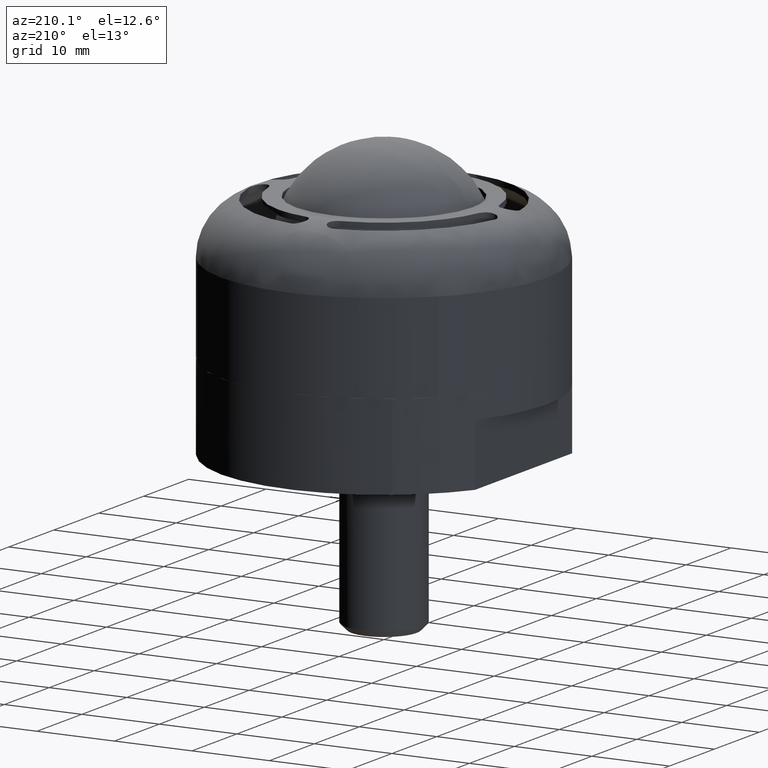
[diagram: clean part render]
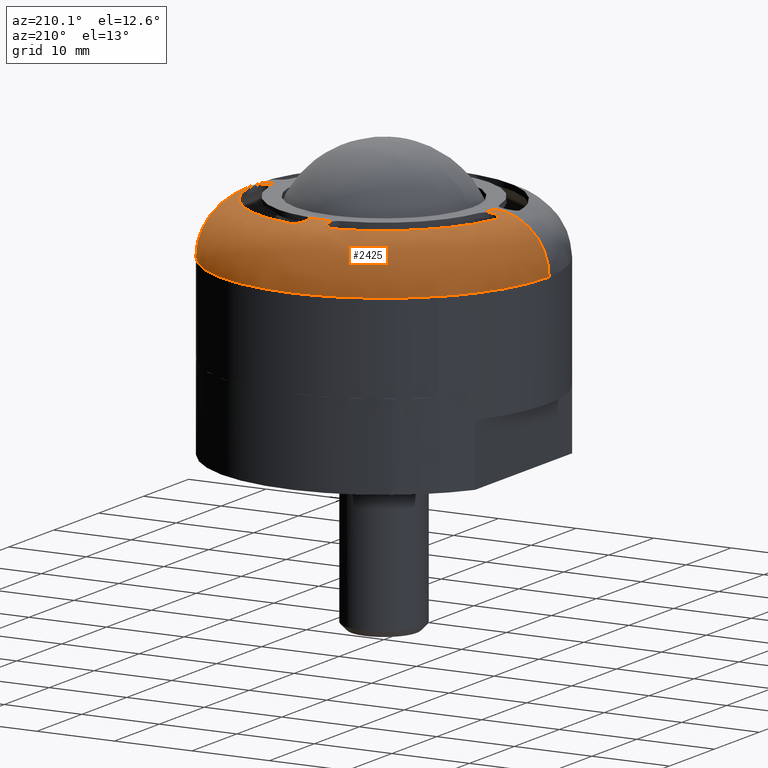
[diagram: same view with one face highlighted and labeled with its STEP entity id]
A machine part, auxiliary view. The second image highlights one B-rep face of the part: STEP entity #2425.
In plain terms, the highlighted face is a freeform B-spline surface patch.
Its self-contained STEP definition (entity closure, byte-faithful):
#1622=CARTESIAN_POINT('',(-20.993368387359819,-0.527715597069550,11.499987475256731));
#1623=VERTEX_POINT('',#1622);
#1642=CARTESIAN_POINT('',(-21.0,0.0,11.500000000000201));
#1643=VERTEX_POINT('',#1642);
#1644=CARTESIAN_POINT('',(-20.993368387359819,-0.527715597069550,11.499987475256731));
#1645=CARTESIAN_POINT('',(-20.997789240548951,-0.351848495049241,11.499991649926310));
#1646=CARTESIAN_POINT('',(-21.000000045159890,-0.175922305187864,11.499995825338980));
#1647=CARTESIAN_POINT('',(-21.0,0.0,11.500000000000201));
#1648=B_SPLINE_CURVE_WITH_KNOTS('',3,(#1644,#1645,#1646,#1647),.UNSPECIFIED.,.F.,.U.,(4,4),(8.567147E-012,0.527772021602235),.UNSPECIFIED.);
#1649=EDGE_CURVE('',#1623,#1643,#1648,.T.);
#1651=CARTESIAN_POINT('',(-15.343410188817231,14.338052998152040,11.499998259417641));
#1652=VERTEX_POINT('',#1651);
#1653=CARTESIAN_POINT('',(-21.0,0.0,11.500000000000201));
#1654=CARTESIAN_POINT('',(-21.000025862269109,0.904196162848490,11.499999996618840));
#1655=CARTESIAN_POINT('',(-20.875072149144479,2.835886784917681,11.499999952116360));
#1656=CARTESIAN_POINT('',(-20.319620306579139,5.540544819988820,11.499999776338569));
#1657=CARTESIAN_POINT('',(-19.494668499493219,7.912605405436048,11.499999521440440));
#1658=CARTESIAN_POINT('',(-18.459913490480769,10.108594034363710,11.499999204636980));
#1659=CARTESIAN_POINT('',(-17.136135247243441,12.244435084637759,11.499998801870129));
#1660=CARTESIAN_POINT('',(-15.960781954138721,13.677429947239220,11.499998445999060));
#1661=CARTESIAN_POINT('',(-15.343410188817231,14.338052998152040,11.499998259417641));
#1662=B_SPLINE_CURVE_WITH_KNOTS('',3,(#1653,#1654,#1655,#1656,#1657,#1658,#1659,#1660,#1661),.UNSPECIFIED.,.F.,.U.,(4,1,1,1,1,1,4),(4.241539E-009,2.712590991617129,5.795087923818242,8.261065538940027,10.233865483240249,13.069762379133710,15.782353366509289),.UNSPECIFIED.);
#1663=EDGE_CURVE('',#1643,#1652,#1662,.T.);
#1719=CARTESIAN_POINT('',(-0.263855487953657,20.998342322227941,11.499993737621599));
#1720=VERTEX_POINT('',#1719);
#1721=CARTESIAN_POINT('',(-15.343410188817231,14.338052998152040,11.499998259417641));
#1722=CARTESIAN_POINT('',(-14.741014343965720,14.982727640593980,11.499998077362770));
#1723=CARTESIAN_POINT('',(-13.390486399734170,16.256646590491140,11.499997669851149));
#1724=CARTESIAN_POINT('',(-11.201138503087540,17.832561102545110,11.499997011065551));
#1725=CARTESIAN_POINT('',(-8.633936695221319,19.217380196064031,11.499996240316930));
#1726=CARTESIAN_POINT('',(-6.145295002215033,20.142889952753769,11.499995494716890));
#1727=CARTESIAN_POINT('',(-3.261564468484383,20.808446530176340,11.499994632272720));
#1728=CARTESIAN_POINT('',(-1.410787767308093,20.984024405783909,11.499994079699130));
#1729=CARTESIAN_POINT('',(-0.263855487953657,20.998342322227941,11.499993737621599));
#1730=B_SPLINE_CURVE_WITH_KNOTS('',3,(#1721,#1722,#1723,#1724,#1725,#1726,#1727,#1728,#1729),.UNSPECIFIED.,.F.,.U.,(4,1,1,1,1,1,4),(3.270301E-009,2.646957502260623,5.558623811935830,8.073242219265966,11.381933961266579,13.499507111959749,16.940557769931608),.UNSPECIFIED.);
#1731=EDGE_CURVE('',#1652,#1720,#1730,.T.);
#1733=CARTESIAN_POINT('',(20.993368387359819,0.527715597069555,11.499987475256800));
#1734=VERTEX_POINT('',#1733);
#1735=CARTESIAN_POINT('',(-0.263855487953657,20.998342322227941,11.499993737621599));
#1736=CARTESIAN_POINT('',(1.099496346287054,21.015656902400131,11.499993330994110));
#1737=CARTESIAN_POINT('',(3.317577773072800,20.826749917637031,11.499992670251810));
#1738=CARTESIAN_POINT('',(6.052074859168467,20.148586229154791,11.499991857344130));
#1739=CARTESIAN_POINT('',(8.017517216781673,19.438783982541299,11.499991273892750));
#1740=CARTESIAN_POINT('',(9.758266678078973,18.630267115881480,11.499990757817191));
#1741=CARTESIAN_POINT('',(11.857282165936480,17.402856018169651,11.499990136473210));
#1742=CARTESIAN_POINT('',(13.820228602407100,15.888850429201421,11.499989556780349));
#1743=CARTESIAN_POINT('',(15.721650393074810,13.989595845992040,11.499988996878139));
#1744=CARTESIAN_POINT('',(17.239329168557379,12.087214941460580,11.499988551423030));
#1745=CARTESIAN_POINT('',(18.730856987398600,9.646905810303453,11.499988115782291));
#1746=CARTESIAN_POINT('',(19.851677173823770,7.058197978865710,11.499987791245591));
#1747=CARTESIAN_POINT('',(20.712615561965269,3.930310345230911,11.499987546228541));
#1748=CARTESIAN_POINT('',(20.961396582323999,1.805558311867306,11.499987480002289));
#1749=CARTESIAN_POINT('',(20.993368387359819,0.527715597069555,11.499987475256800));
#1750=B_SPLINE_CURVE_WITH_KNOTS('',3,(#1735,#1736,#1737,#1738,#1739,#1740,#1741,#1742,#1743,#1744,#1745,#1746,#1747,#1748,#1749),.UNSPECIFIED.,.F.,.U.,(4,1,1,1,1,1,1,1,1,1,1,1,4),(0.000000010626252,4.090346179859317,6.646828693789491,8.436364496557200,10.353722645907441,12.398900041319751,15.722335109651921,17.767492104969140,20.451782063331379,23.008260024106509,26.331684654167770,28.888165675824300,32.722864654646102),.UNSPECIFIED.);
#1751=EDGE_CURVE('',#1720,#1734,#1750,.T.);
#2089=CARTESIAN_POINT('',(-13.498170005223978,-0.717186384398384,18.482964110853604));
#2090=CARTESIAN_POINT('',(-13.502888804737763,-0.529470851166079,18.482964110853601));
#2091=CARTESIAN_POINT('',(-13.847218981498038,13.168106795385869,18.482964110853601));
#2092=CARTESIAN_POINT('',(-0.339556093056088,13.507662888441953,18.482964110853601));
#2093=CARTESIAN_POINT('',(13.168106795385865,13.847218981498042,18.482964110853601));
#2094=CARTESIAN_POINT('',(13.512437103294115,0.149636117833486,18.482964110853601));
#2095=CARTESIAN_POINT('',(13.517156030927195,-0.038084512030605,18.482964110853597));
#2096=CARTESIAN_POINT('',(-21.519427560280032,-1.143372800928364,19.044176399241632));
#2097=CARTESIAN_POINT('',(-21.526950495927537,-0.844107728865368,19.044176399241621));
#2098=CARTESIAN_POINT('',(-22.075898115696997,20.993225020848691,19.044176399241621));
#2099=CARTESIAN_POINT('',(-0.541336547424152,21.534561568272853,19.044176399241614));
#2100=CARTESIAN_POINT('',(20.993225020848691,22.075898115696997,19.044176399241621));
#2101=CARTESIAN_POINT('',(21.542172849700510,0.238557048612738,19.044176399241632));
#2102=CARTESIAN_POINT('',(21.549695989601936,-0.060716148744166,19.044176399241621));
#2103=CARTESIAN_POINT('',(-20.961777040819083,-1.113743646779670,11.014533283956411));
#2104=CARTESIAN_POINT('',(-20.969105028484812,-0.822233675191580,11.014533283956409));
#2105=CARTESIAN_POINT('',(-21.503827319794048,20.449210417986066,11.014533283956409));
#2106=CARTESIAN_POINT('',(-0.527308450903988,20.976518868890064,11.014533283956407));
#2107=CARTESIAN_POINT('',(20.449210417986066,21.503827319794048,11.014533283956409));
#2108=CARTESIAN_POINT('',(20.983932912959521,0.232375124781014,11.014533283956403));
#2109=CARTESIAN_POINT('',(20.991261099586175,-0.059142761543600,11.014533283956412));
#2117=(BOUNDED_SURFACE()B_SPLINE_SURFACE(2,2,((#2089,#2096,#2103),(#2090,#2097,#2104),(#2091,#2098,#2105),(#2092,#2099,#2106),(#2093,#2100,#2107),(#2094,#2101,#2108),(#2095,#2102,#2109)),.UNSPECIFIED.,.F.,.F.,.U.)B_SPLINE_SURFACE_WITH_KNOTS((3,1,2,1,3),(3,3),(0.0,0.695320470278894,35.461334377525340,70.227348284771779,70.922687967962872),(0.0,12.759095463384661),.UNSPECIFIED.)GEOMETRIC_REPRESENTATION_ITEM()RATIONAL_B_SPLINE_SURFACE(((0.921564755186640,0.606435096237288,0.926698614670359),(0.916228866190503,0.602923817904787,0.921333000465904),(0.644098601109340,0.423848671459813,0.647686750171189),(0.910892977194367,0.599412539572285,0.915967386261449),(0.644098601109340,0.423848671459813,0.647686750171189),(0.916229013630383,0.602923914927505,0.921333148727144),(0.921565050066400,0.606435290282725,0.926698911192838)))REPRESENTATION_ITEM('')SURFACE());
#2118=ORIENTED_EDGE('',*,*,#1649,.F.);
#2119=CARTESIAN_POINT('',(-13.995578650241310,-0.351821336216355,18.500000000000099));
#2120=VERTEX_POINT('',#2119);
#2121=CARTESIAN_POINT('',(-13.995578650241310,-0.351821336216355,18.500000000000099));
#2122=CARTESIAN_POINT('',(-14.467897500586719,-0.363693949692592,18.500059464718561));
#2123=CARTESIAN_POINT('',(-15.298007685022039,-0.384560215181993,18.415605277636651));
#2124=CARTESIAN_POINT('',(-16.374322655721620,-0.411615033281278,18.106929749219059));
#2125=CARTESIAN_POINT('',(-17.239547268475171,-0.433363614413181,17.723273687868289));
#2126=CARTESIAN_POINT('',(-18.049972720491020,-0.453734592762236,17.233977439185740));
#2127=CARTESIAN_POINT('',(-18.973354761919861,-0.476944635761414,16.480787002610960));
#2128=CARTESIAN_POINT('',(-19.758795411242360,-0.496687046548531,15.541205592037381));
#2129=CARTESIAN_POINT('',(-20.349567363549451,-0.511535966775816,14.490312756115920));
#2130=CARTESIAN_POINT('',(-20.690465666832360,-0.520104043460668,13.606304186435599));
#2131=CARTESIAN_POINT('',(-20.932055154314899,-0.526175667611467,12.602391048913359));
#2132=CARTESIAN_POINT('',(-20.993412415753021,-0.527717190701008,11.915184441499790));
#2133=CARTESIAN_POINT('',(-20.993368387359819,-0.527715597069550,11.499987475256731));
#2134=B_SPLINE_CURVE_WITH_KNOTS('',3,(#2121,#2122,#2123,#2124,#2125,#2126,#2127,#2128,#2129,#2130,#2131,#2132,#2133),.UNSPECIFIED.,.F.,.U.,(4,1,1,1,1,1,1,1,1,1,4),(0.000000035612858,1.417396088417014,2.491189246745506,3.350226738458064,4.252217012006690,5.326004244580879,6.915189215184395,7.903083704796265,8.933928093394979,9.750015299149693,10.995598595429490),.UNSPECIFIED.);
#2135=EDGE_CURVE('',#2120,#1623,#2134,.T.);
#2136=ORIENTED_EDGE('',*,*,#2135,.F.);
#2137=CARTESIAN_POINT('',(-14.0,0.0,18.500000000000199));
#2138=VERTEX_POINT('',#2137);
#2139=CARTESIAN_POINT('',(-13.995578650241310,-0.351821336216355,18.500000000000099));
#2140=CARTESIAN_POINT('',(-13.998526068122610,-0.234573192977593,18.500000000000149));
#2141=CARTESIAN_POINT('',(-14.000000025067431,-0.117285418986223,18.500000000000160));
#2142=CARTESIAN_POINT('',(-14.0,0.0,18.500000000000199));
#2143=B_SPLINE_CURVE_WITH_KNOTS('',3,(#2139,#2140,#2141,#2142),.UNSPECIFIED.,.F.,.U.,(4,4),(5.712153E-012,0.351858955978066),.UNSPECIFIED.);
#2144=EDGE_CURVE('',#2120,#2138,#2143,.T.);
#2145=ORIENTED_EDGE('',*,*,#2144,.T.);
#2146=CARTESIAN_POINT('',(-13.902033138296140,1.653322298196790,18.500000000000000));
#2147=VERTEX_POINT('',#2146);
#2148=CARTESIAN_POINT('',(-14.0,0.0,18.500000000000199));
#2149=CARTESIAN_POINT('',(-14.000006558155480,0.552397527724508,18.500000000000050));
#2150=CARTESIAN_POINT('',(-13.967280189833160,1.104790967113527,18.500000000000021));
#2151=CARTESIAN_POINT('',(-13.902033138296140,1.653322298196790,18.500000000000000));
#2152=B_SPLINE_CURVE_WITH_KNOTS('',3,(#2148,#2149,#2150,#2151),.UNSPECIFIED.,.F.,.U.,(4,4),(1.875362E-010,1.657193351812113),.UNSPECIFIED.);
#2153=EDGE_CURVE('',#2138,#2147,#2152,.T.);
#2154=ORIENTED_EDGE('',*,*,#2153,.T.);
#2155=CARTESIAN_POINT('',(-15.953885598797850,2.813100478204390,18.145299090334600));
#2156=VERTEX_POINT('',#2155);
#2157=CARTESIAN_POINT('',(-13.902033138296140,1.653322298196790,18.500000000000000));
#2158=CARTESIAN_POINT('',(-14.000375272507060,1.567693898843851,18.500000000000199));
#2159=CARTESIAN_POINT('',(-14.109315365535180,1.499251620398170,18.498382466081448));
#2160=CARTESIAN_POINT('',(-14.258587238000350,1.435009508475282,18.492246186835629));
#2161=CARTESIAN_POINT('',(-14.289058941413360,1.423287935258418,18.490811097585219));
#2162=CARTESIAN_POINT('',(-14.350260680975250,1.402430998818135,18.487533591054000));
#2163=CARTESIAN_POINT('',(-14.381120328319160,1.393237359549367,18.485686237046011));
#2164=CARTESIAN_POINT('',(-14.474456859993930,1.369290602558202,18.479475391075940));
#2165=CARTESIAN_POINT('',(-14.537686725948470,1.358150513061608,18.474444228292260));
#2166=CARTESIAN_POINT('',(-14.634049861790020,1.348782686155943,18.465378286509040));
#2167=CARTESIAN_POINT('',(-14.666562007212550,1.346892127724846,18.462086924697601));
#2168=CARTESIAN_POINT('',(-14.731119475660529,1.345650578608668,18.455074501756641));
#2169=CARTESIAN_POINT('',(-14.763225488777520,1.346282147959193,18.451349893155111));
#2170=CARTESIAN_POINT('',(-14.859037572831680,1.351832206238787,18.439525097496158));
#2171=CARTESIAN_POINT('',(-14.922240138038561,1.360385080690130,18.430774308819078));
#2172=CARTESIAN_POINT('',(-15.047304550979460,1.387183000575277,18.411552817232209));
#2173=CARTESIAN_POINT('',(-15.109428737023331,1.405609281980913,18.401018438034210));
#2174=CARTESIAN_POINT('',(-15.228315914353409,1.451016503666773,18.379022127456910));
#2175=CARTESIAN_POINT('',(-15.285581024428261,1.478058069559342,18.367491891882590));
#2176=CARTESIAN_POINT('',(-15.368269594798161,1.525072332721492,18.349559323079710));
#2177=CARTESIAN_POINT('',(-15.395295313843480,1.541823878669028,18.343475628959791));
#2178=CARTESIAN_POINT('',(-15.448253911784670,1.577538032550179,18.331124247604240));
#2179=CARTESIAN_POINT('',(-15.474109583225029,1.596462039156625,18.324872734845808));
#2180=CARTESIAN_POINT('',(-15.548796480156250,1.655620245162400,18.306202215533521));
#2181=CARTESIAN_POINT('',(-15.595178321499301,1.698497113390024,18.293770243574119));
#2182=CARTESIAN_POINT('',(-15.659745415763609,1.767925334648002,18.275380781882141));
#2183=CARTESIAN_POINT('',(-15.680429720091070,1.791924107175044,18.269294295350711));
#2184=CARTESIAN_POINT('',(-15.720094065790910,1.841674277446971,18.257252287257071));
#2185=CARTESIAN_POINT('',(-15.739149328411630,1.867541046748754,18.251271931375371));
#2186=CARTESIAN_POINT('',(-15.793033358668390,1.946922326972606,18.233809525524560));
#2187=CARTESIAN_POINT('',(-15.824564071794420,2.002060193897009,18.222824954059881));
#2188=CARTESIAN_POINT('',(-15.879066802871280,2.116716003521479,18.202473905775381));
#2189=CARTESIAN_POINT('',(-15.902040041841619,2.176233071159915,18.193105784081549));
#2190=CARTESIAN_POINT('',(-15.929766091689711,2.268996504565084,18.180562243283280));
#2191=CARTESIAN_POINT('',(-15.937834882841919,2.300391432639526,18.176651772075932));
#2192=CARTESIAN_POINT('',(-15.951426145461941,2.363235936155947,18.169509733943141));
#2193=CARTESIAN_POINT('',(-15.956988132822859,2.394812362240155,18.166260561676062));
#2194=CARTESIAN_POINT('',(-15.970016055682720,2.490002289250462,18.157509924702190));
#2195=CARTESIAN_POINT('',(-15.973846515815270,2.554073799020367,18.153001648944059));
#2196=CARTESIAN_POINT('',(-15.972080242678100,2.651137357958078,18.148412387611170));
#2197=CARTESIAN_POINT('',(-15.970220578581950,2.683755092693863,18.147244252666859));
#2198=CARTESIAN_POINT('',(-15.963953352359210,2.748648895761220,18.145689568025791));
#2199=CARTESIAN_POINT('',(-15.959554841237320,2.780948606627420,18.145299090334579));
#2200=CARTESIAN_POINT('',(-15.953885598798021,2.813100478204410,18.145299090334579));
#2201=B_SPLINE_CURVE_WITH_KNOTS('',3,(#2157,#2158,#2159,#2160,#2161,#2162,#2163,#2164,#2165,#2166,#2167,#2168,#2169,#2170,#2171,#2172,#2173,#2174,#2175,#2176,#2177,#2178,#2179,#2180,#2181,#2182,#2183,#2184,#2185,#2186,#2187,#2188,#2189,#2190,#2191,#2192,#2193,#2194,#2195,#2196,#2197,#2198,#2199,#2200),.UNSPECIFIED.,.F.,.U.,(4,2,2,2,2,2,2,2,2,2,2,2,2,2,2,2,2,2,2,2,2,4),(0.0,0.124999999999996,0.156249999999995,0.187499999999995,0.249999999999992,0.281249999999992,0.312499999999992,0.374999999999991,0.437499999999990,0.499999999999990,0.531249999999989,0.562499999999989,0.624999999999990,0.656249999999991,0.687499999999991,0.749999999999993,0.812499999999995,0.843749999999995,0.874999999999996,0.937499999999998,0.968749999999999,1.0),.UNSPECIFIED.);
#2202=EDGE_CURVE('',#2147,#2156,#2201,.T.);
#2203=ORIENTED_EDGE('',*,*,#2202,.T.);
#2204=CARTESIAN_POINT('',(-2.813100478204215,15.953885598797701,18.145299090334699));
#2205=VERTEX_POINT('',#2204);
#2206=CARTESIAN_POINT('',(-15.953885598797850,2.813100478204390,18.145299090334600));
#2207=CARTESIAN_POINT('',(-15.783934078027160,3.777539788975582,18.145299090334600));
#2208=CARTESIAN_POINT('',(-15.308991745943370,5.525547491963803,18.145299090334628));
#2209=CARTESIAN_POINT('',(-14.323717139731320,7.661222505496598,18.145299090334611));
#2210=CARTESIAN_POINT('',(-13.188412062654310,9.477231719805122,18.145299090334571));
#2211=CARTESIAN_POINT('',(-11.823086765748551,11.164268035237439,18.145299090334820));
#2212=CARTESIAN_POINT('',(-9.914209459475076,12.907522770379121,18.145299090334380));
#2213=CARTESIAN_POINT('',(-7.870747025039647,14.226009896086669,18.145299090335278));
#2214=CARTESIAN_POINT('',(-5.474700972215452,15.317548771730060,18.145299090334799));
#2215=CARTESIAN_POINT('',(-3.853684704919721,15.770531762875979,18.145299090334571));
#2216=CARTESIAN_POINT('',(-2.813100478204215,15.953885598797701,18.145299090334699));
#2217=B_SPLINE_CURVE_WITH_KNOTS('',3,(#2206,#2207,#2208,#2209,#2210,#2211,#2212,#2213,#2214,#2215,#2216),.UNSPECIFIED.,.F.,.U.,(4,1,1,1,1,1,1,1,4),(0.000000016450699,2.937876783793858,5.411889503518433,7.035457862179541,9.354852743168570,11.906150496177171,14.766726504661239,16.622238077280041,19.792052499815131),.UNSPECIFIED.);
#2218=EDGE_CURVE('',#2156,#2205,#2217,.T.);
#2219=ORIENTED_EDGE('',*,*,#2218,.T.);
#2220=CARTESIAN_POINT('',(-1.653322298196545,13.902033138296179,18.500000000000000));
#2221=VERTEX_POINT('',#2220);
#2222=CARTESIAN_POINT('',(-2.813100478204215,15.953885598797701,18.145299090334699));
#2223=CARTESIAN_POINT('',(-2.684482878163525,15.976564351878910,18.145299090334671));
#2224=CARTESIAN_POINT('',(-2.555944809700223,15.978943455206579,18.151475206067101));
#2225=CARTESIAN_POINT('',(-2.395342749877392,15.957084700265421,18.166205111409820));
#2226=CARTESIAN_POINT('',(-2.363339847545866,15.951446504823410,18.169498490490579));
#2227=CARTESIAN_POINT('',(-2.300444201088844,15.937848403076449,18.176645210869520));
#2228=CARTESIAN_POINT('',(-2.269421008266009,15.929872244465420,18.180510115974052));
#2229=CARTESIAN_POINT('',(-2.177591542060967,15.902486790602010,18.192911729764820));
#2230=CARTESIAN_POINT('',(-2.118018212160973,15.879641402687190,18.202252753743458));
#2231=CARTESIAN_POINT('',(-2.031126256153260,15.838402708628690,18.217660916014861));
#2232=CARTESIAN_POINT('',(-2.002515499461353,15.823443926936919,18.223044709496669));
#2233=CARTESIAN_POINT('',(-1.947044822945686,15.791672674846700,18.234062440641491));
#2234=CARTESIAN_POINT('',(-1.920071243439617,15.774812871521609,18.239715094752899));
#2235=CARTESIAN_POINT('',(-1.841371915764174,15.721373591710901,18.257031004542181));
#2236=CARTESIAN_POINT('',(-1.791854340850704,15.681951440405481,18.269050567780148));
#2237=CARTESIAN_POINT('',(-1.721995053565657,15.617054413150511,18.287542471675579));
#2238=CARTESIAN_POINT('',(-1.699365977392439,15.594365670356430,18.293808158331672));
#2239=CARTESIAN_POINT('',(-1.656049081858908,15.547458081211809,18.306333700577181));
#2240=CARTESIAN_POINT('',(-1.635412069664760,15.523310612751001,18.312576166993281));
#2241=CARTESIAN_POINT('',(-1.576481970136201,15.448830328420639,18.331186256981830));
#2242=CARTESIAN_POINT('',(-1.541152142478335,15.396471422426600,18.343435991369841));
#2243=CARTESIAN_POINT('',(-1.494095083316446,15.313825819649439,18.361370030416641));
#2244=CARTESIAN_POINT('',(-1.479403428279315,15.285589812421660,18.367274820395039));
#2245=CARTESIAN_POINT('',(-1.452064602587092,15.227697111692590,18.378904851397770));
#2246=CARTESIAN_POINT('',(-1.439467071535213,15.198118164815300,18.384612120853429));
#2247=CARTESIAN_POINT('',(-1.405378144312792,15.108739449658501,18.401140178873661));
#2248=CARTESIAN_POINT('',(-1.387344162882166,15.047841644999240,18.411461420713842));
#2249=CARTESIAN_POINT('',(-1.367280681914044,14.954526836475340,18.425816411336200));
#2250=CARTESIAN_POINT('',(-1.361762570834917,14.923092567699300,18.430413576670240));
#2251=CARTESIAN_POINT('',(-1.353120879637206,14.859549017413940,18.439218222571220));
#2252=CARTESIAN_POINT('',(-1.349991246990359,14.827299925790580,18.443442533032950));
#2253=CARTESIAN_POINT('',(-1.344397173582500,14.730597883234580,18.455375706999781));
#2254=CARTESIAN_POINT('',(-1.345671608686029,14.666497508840120,18.462317662719780));
#2255=CARTESIAN_POINT('',(-1.357977857316894,14.539023317137669,18.474326293990838));
#2256=CARTESIAN_POINT('',(-1.369008766294946,14.475649337872261,18.479392151687470));
#2257=CARTESIAN_POINT('',(-1.401279206620113,14.349682541613140,18.487782048165631));
#2258=CARTESIAN_POINT('',(-1.422243614291059,14.288319511452860,18.491020028020870));
#2259=CARTESIAN_POINT('',(-1.473051120324092,14.170125314021250,18.495886576139579));
#2260=CARTESIAN_POINT('',(-1.502953552873275,14.113060390988711,18.497529361378518));
#2261=CARTESIAN_POINT('',(-1.554736270921811,14.030604727526001,18.499077293726870));
#2262=CARTESIAN_POINT('',(-1.573220477818845,14.003576284975800,18.499440030080699));
#2263=CARTESIAN_POINT('',(-1.611904653611138,13.951494444332351,18.499899986041989));
#2264=CARTESIAN_POINT('',(-1.632164007323602,13.926332920803199,18.500000000000199));
#2265=CARTESIAN_POINT('',(-1.653322298196541,13.902033138296179,18.500000000000199));
#2266=B_SPLINE_CURVE_WITH_KNOTS('',3,(#2222,#2223,#2224,#2225,#2226,#2227,#2228,#2229,#2230,#2231,#2232,#2233,#2234,#2235,#2236,#2237,#2238,#2239,#2240,#2241,#2242,#2243,#2244,#2245,#2246,#2247,#2248,#2249,#2250,#2251,#2252,#2253,#2254,#2255,#2256,#2257,#2258,#2259,#2260,#2261,#2262,#2263,#2264,#2265),.UNSPECIFIED.,.F.,.U.,(4,2,2,2,2,2,2,2,2,2,2,2,2,2,2,2,2,2,2,2,2,4),(0.0,0.124999999999999,0.156249999999999,0.187499999999999,0.249999999999999,0.281250000000000,0.312500000000001,0.375000000000002,0.406250000000005,0.437500000000007,0.500000000000011,0.531250000000012,0.562500000000014,0.625000000000015,0.656250000000015,0.687500000000014,0.750000000000011,0.812500000000009,0.875000000000006,0.937500000000003,0.968750000000001,1.0),.UNSPECIFIED.);
#2267=EDGE_CURVE('',#2205,#2221,#2266,.T.);
#2268=ORIENTED_EDGE('',*,*,#2267,.T.);
#2269=CARTESIAN_POINT('',(1.653322298196595,13.902033138296179,18.500000000000000));
#2270=VERTEX_POINT('',#2269);
#2271=CARTESIAN_POINT('',(-1.653322298196545,13.902033138296179,18.500000000000000));
#2272=CARTESIAN_POINT('',(-0.556263204081593,14.032692275169110,18.500000000000011));
#2273=CARTESIAN_POINT('',(0.556262687863895,14.032615930351239,18.500000000000021));
#2274=CARTESIAN_POINT('',(1.653322298196595,13.902033138296179,18.500000000000000));
#2275=B_SPLINE_CURVE_WITH_KNOTS('',3,(#2271,#2272,#2273,#2274),.UNSPECIFIED.,.F.,.U.,(4,4),(3.944347E-010,3.314386703636704),.UNSPECIFIED.);
#2276=EDGE_CURVE('',#2221,#2270,#2275,.T.);
#2277=ORIENTED_EDGE('',*,*,#2276,.T.);
#2278=CARTESIAN_POINT('',(2.813100478204255,15.953885598797701,18.145299090334699));
#2279=VERTEX_POINT('',#2278);
#2280=CARTESIAN_POINT('',(1.653322298196595,13.902033138296179,18.500000000000000));
#2281=CARTESIAN_POINT('',(1.567693898843654,14.000375272507091,18.500000000000199));
#2282=CARTESIAN_POINT('',(1.499251620397991,14.109315365535210,18.498382466081459));
#2283=CARTESIAN_POINT('',(1.435009508475124,14.258587238000359,18.492246186835640));
#2284=CARTESIAN_POINT('',(1.423287935258264,14.289058941413380,18.490811097585230));
#2285=CARTESIAN_POINT('',(1.402430998817987,14.350260680975261,18.487533591054010));
#2286=CARTESIAN_POINT('',(1.393237359549222,14.381120328319160,18.485686237046021));
#2287=CARTESIAN_POINT('',(1.369290602558068,14.474456859993920,18.479475391075962));
#2288=CARTESIAN_POINT('',(1.358150513061480,14.537686725948451,18.474444228292260));
#2289=CARTESIAN_POINT('',(1.348782686155824,14.634049861789981,18.465378286509061));
#2290=CARTESIAN_POINT('',(1.346892127724731,14.666562007212519,18.462086924697630));
#2291=CARTESIAN_POINT('',(1.345650578608558,14.731119475660490,18.455074501756659));
#2292=CARTESIAN_POINT('',(1.346282147959086,14.763225488777479,18.451349893155140));
#2293=CARTESIAN_POINT('',(1.351832206238686,14.859037572831619,18.439525097496180));
#2294=CARTESIAN_POINT('',(1.360385080690033,14.922240138038481,18.430774308819100));
#2295=CARTESIAN_POINT('',(1.387183000575186,15.047304550979360,18.411552817232259));
#2296=CARTESIAN_POINT('',(1.405609281980824,15.109428737023229,18.401018438034260));
#2297=CARTESIAN_POINT('',(1.451016503666689,15.228315914353290,18.379022127456970));
#2298=CARTESIAN_POINT('',(1.478058069559259,15.285581024428129,18.367491891882629));
#2299=CARTESIAN_POINT('',(1.525072332721409,15.368269594798001,18.349559323079770));
#2300=CARTESIAN_POINT('',(1.541823878668944,15.395295313843310,18.343475628959851));
#2301=CARTESIAN_POINT('',(1.577538032550096,15.448253911784491,18.331124247604301));
#2302=CARTESIAN_POINT('',(1.596462039156543,15.474109583224850,18.324872734845879));
#2303=CARTESIAN_POINT('',(1.655620245162318,15.548796480156049,18.306202215533592));
#2304=CARTESIAN_POINT('',(1.698497113389941,15.595178321499089,18.293770243574190));
#2305=CARTESIAN_POINT('',(1.767925334647917,15.659745415763391,18.275380781882220));
#2306=CARTESIAN_POINT('',(1.791924107174957,15.680429720090840,18.269294295350800));
#2307=CARTESIAN_POINT('',(1.841674277446882,15.720094065790670,18.257252287257160));
#2308=CARTESIAN_POINT('',(1.867541046748658,15.739149328411401,18.251271931375470));
#2309=CARTESIAN_POINT('',(1.946922326972509,15.793033358668140,18.233809525524659));
#2310=CARTESIAN_POINT('',(2.002060193896912,15.824564071794169,18.222824954059980));
#2311=CARTESIAN_POINT('',(2.116716003521375,15.879066802871000,18.202473905775481));
#2312=CARTESIAN_POINT('',(2.176233071159807,15.902040041841341,18.193105784081659));
#2313=CARTESIAN_POINT('',(2.268996504564966,15.929766091689419,18.180562243283401));
#2314=CARTESIAN_POINT('',(2.300391432639404,15.937834882841621,18.176651772076049));
#2315=CARTESIAN_POINT('',(2.363235936155823,15.951426145461630,18.169509733943261));
#2316=CARTESIAN_POINT('',(2.394812362240029,15.956988132822550,18.166260561676179));
#2317=CARTESIAN_POINT('',(2.490002289250337,15.970016055682420,18.157509924702321));
#2318=CARTESIAN_POINT('',(2.554073799020238,15.973846515814950,18.153001648944191));
#2319=CARTESIAN_POINT('',(2.651137357957945,15.972080242677769,18.148412387611302));
#2320=CARTESIAN_POINT('',(2.683755092693710,15.970220578581630,18.147244252666990));
#2321=CARTESIAN_POINT('',(2.748648895761067,15.963953352358891,18.145689568025919));
#2322=CARTESIAN_POINT('',(2.780948606627266,15.959554841237001,18.145299090334699));
#2323=CARTESIAN_POINT('',(2.813100478204255,15.953885598797701,18.145299090334699));
#2324=B_SPLINE_CURVE_WITH_KNOTS('',3,(#2280,#2281,#2282,#2283,#2284,#2285,#2286,#2287,#2288,#2289,#2290,#2291,#2292,#2293,#2294,#2295,#2296,#2297,#2298,#2299,#2300,#2301,#2302,#2303,#2304,#2305,#2306,#2307,#2308,#2309,#2310,#2311,#2312,#2313,#2314,#2315,#2316,#2317,#2318,#2319,#2320,#2321,#2322,#2323),.UNSPECIFIED.,.F.,.U.,(4,2,2,2,2,2,2,2,2,2,2,2,2,2,2,2,2,2,2,2,2,4),(0.0,0.125000000000002,0.156250000000002,0.187500000000002,0.250000000000003,0.281250000000003,0.312500000000004,0.375000000000004,0.437500000000005,0.500000000000006,0.531250000000006,0.562500000000006,0.625000000000005,0.656250000000004,0.687500000000002,0.750000000000001,0.812500000000001,0.843750000000000,0.875000000000000,0.937500000000000,0.968750000000000,1.0),.UNSPECIFIED.);
#2325=EDGE_CURVE('',#2270,#2279,#2324,.T.);
#2326=ORIENTED_EDGE('',*,*,#2325,.T.);
#2327=CARTESIAN_POINT('',(15.953885598797751,2.813100478204415,18.145299090334650));
#2328=VERTEX_POINT('',#2327);
#2329=CARTESIAN_POINT('',(2.813100478204255,15.953885598797701,18.145299090334699));
#2330=CARTESIAN_POINT('',(3.599873124074125,15.815206481055370,18.145299090334699));
#2331=CARTESIAN_POINT('',(4.752036358286948,15.522759551411720,18.145299090334710));
#2332=CARTESIAN_POINT('',(6.442541524225208,14.889789103961309,18.145299090334689));
#2333=CARTESIAN_POINT('',(7.952397660221804,14.157985973536579,18.145299090334621));
#2334=CARTESIAN_POINT('',(9.408263724836381,13.223489173858090,18.145299090334490));
#2335=CARTESIAN_POINT('',(10.739100906459800,12.162062678950750,18.145299090334689));
#2336=CARTESIAN_POINT('',(12.000680376328900,10.941964433223220,18.145299090334738));
#2337=CARTESIAN_POINT('',(13.446890574157310,9.155159576901479,18.145299090334738));
#2338=CARTESIAN_POINT('',(14.687543617461539,7.002961328444897,18.145299090334682));
#2339=CARTESIAN_POINT('',(15.526266087506730,4.778833241618957,18.145299090334689));
#2340=CARTESIAN_POINT('',(15.846490975787431,3.422204372243167,18.145299090334628));
#2341=CARTESIAN_POINT('',(15.953885598797751,2.813100478204415,18.145299090334650));
#2342=B_SPLINE_CURVE_WITH_KNOTS('',3,(#2329,#2330,#2331,#2332,#2333,#2334,#2335,#2336,#2337,#2338,#2339,#2340,#2341),.UNSPECIFIED.,.F.,.U.,(4,1,1,1,1,1,1,1,1,1,4),(0.000000016446226,2.396693794743371,3.556380959237984,5.411889503516239,7.422021209727967,8.736349116890532,10.514527794720079,12.679276430848590,15.617169169889200,17.936550695379751,19.792052499815021),.UNSPECIFIED.);
#2343=EDGE_CURVE('',#2279,#2328,#2342,.T.);
#2344=ORIENTED_EDGE('',*,*,#2343,.T.);
#2345=CARTESIAN_POINT('',(13.902033138296179,1.653322298196605,18.500000000000000));
#2346=VERTEX_POINT('',#2345);
#2347=CARTESIAN_POINT('',(15.953885598797751,2.813100478204415,18.145299090334650));
#2348=CARTESIAN_POINT('',(15.976564351878800,2.684482878163735,18.145299090334689));
#2349=CARTESIAN_POINT('',(15.978943455206480,2.555944809700438,18.151475206067119));
#2350=CARTESIAN_POINT('',(15.957084700265341,2.395342749877610,18.166205111409852));
#2351=CARTESIAN_POINT('',(15.951446504823330,2.363339847546084,18.169498490490611));
#2352=CARTESIAN_POINT('',(15.937848403076361,2.300444201089061,18.176645210869530));
#2353=CARTESIAN_POINT('',(15.929872244465329,2.269421008266228,18.180510115974059));
#2354=CARTESIAN_POINT('',(15.902486790601930,2.177591542061188,18.192911729764841));
#2355=CARTESIAN_POINT('',(15.879641402687120,2.118018212161195,18.202252753743480));
#2356=CARTESIAN_POINT('',(15.838402708628630,2.031126256153482,18.217660916014861));
#2357=CARTESIAN_POINT('',(15.823443926936850,2.002515499461567,18.223044709496691));
#2358=CARTESIAN_POINT('',(15.791672674846639,1.947044822945900,18.234062440641509));
#2359=CARTESIAN_POINT('',(15.774812871521551,1.920071243439832,18.239715094752899));
#2360=CARTESIAN_POINT('',(15.721373591710840,1.841371915764388,18.257031004542188));
#2361=CARTESIAN_POINT('',(15.681951440405440,1.791854340850917,18.269050567780159));
#2362=CARTESIAN_POINT('',(15.617054413150470,1.721995053565866,18.287542471675572));
#2363=CARTESIAN_POINT('',(15.594365670356391,1.699365977392651,18.293808158331672));
#2364=CARTESIAN_POINT('',(15.547458081211790,1.656049081859118,18.306333700577181));
#2365=CARTESIAN_POINT('',(15.523310612750979,1.635412069664967,18.312576166993288));
#2366=CARTESIAN_POINT('',(15.448830328420600,1.576481970136404,18.331186256981820));
#2367=CARTESIAN_POINT('',(15.396471422426581,1.541152142478535,18.343435991369841));
#2368=CARTESIAN_POINT('',(15.313825819649431,1.494095083316642,18.361370030416641));
#2369=CARTESIAN_POINT('',(15.285589812421660,1.479403428279509,18.367274820395050));
#2370=CARTESIAN_POINT('',(15.227697111692590,1.452064602587282,18.378904851397781));
#2371=CARTESIAN_POINT('',(15.198118164815289,1.439467071535401,18.384612120853429));
#2372=CARTESIAN_POINT('',(15.108739449658501,1.405378144312973,18.401140178873661));
#2373=CARTESIAN_POINT('',(15.047841644999250,1.387344162882343,18.411461420713849));
#2374=CARTESIAN_POINT('',(14.954526836475340,1.367280681914214,18.425816411336200));
#2375=CARTESIAN_POINT('',(14.923092567699300,1.361762570835084,18.430413576670240));
#2376=CARTESIAN_POINT('',(14.859549017413940,1.353120879637368,18.439218222571220));
#2377=CARTESIAN_POINT('',(14.827299925790591,1.349991246990518,18.443442533032950));
#2378=CARTESIAN_POINT('',(14.730597883234580,1.344397173582651,18.455375706999789));
#2379=CARTESIAN_POINT('',(14.666497508840120,1.345671608686174,18.462317662719780));
#2380=CARTESIAN_POINT('',(14.539023317137680,1.357977857317028,18.474326293990838));
#2381=CARTESIAN_POINT('',(14.475649337872280,1.369008766295073,18.479392151687470));
#2382=CARTESIAN_POINT('',(14.349682541613159,1.401279206620226,18.487782048165631));
#2383=CARTESIAN_POINT('',(14.288319511452871,1.422243614291167,18.491020028020870));
#2384=CARTESIAN_POINT('',(14.170125314021259,1.473051120324187,18.495886576139579));
#2385=CARTESIAN_POINT('',(14.113060390988720,1.502953552873363,18.497529361378518));
#2386=CARTESIAN_POINT('',(14.030604727526001,1.554736270921890,18.499077293726870));
#2387=CARTESIAN_POINT('',(14.003576284975811,1.573220477818916,18.499440030080692));
#2388=CARTESIAN_POINT('',(13.951494444332370,1.611904653611205,18.499899986041989));
#2389=CARTESIAN_POINT('',(13.926332920803199,1.632164007323666,18.500000000000210));
#2390=CARTESIAN_POINT('',(13.902033138296179,1.653322298196603,18.500000000000199));
#2391=B_SPLINE_CURVE_WITH_KNOTS('',3,(#2347,#2348,#2349,#2350,#2351,#2352,#2353,#2354,#2355,#2356,#2357,#2358,#2359,#2360,#2361,#2362,#2363,#2364,#2365,#2366,#2367,#2368,#2369,#2370,#2371,#2372,#2373,#2374,#2375,#2376,#2377,#2378,#2379,#2380,#2381,#2382,#2383,#2384,#2385,#2386,#2387,#2388,#2389,#2390),.UNSPECIFIED.,.F.,.U.,(4,2,2,2,2,2,2,2,2,2,2,2,2,2,2,2,2,2,2,2,2,4),(0.0,0.125000000000012,0.156250000000014,0.187500000000017,0.250000000000021,0.281250000000022,0.312500000000023,0.375000000000025,0.406250000000025,0.437500000000025,0.500000000000026,0.531250000000026,0.562500000000026,0.625000000000025,0.656250000000024,0.687500000000023,0.750000000000019,0.812500000000014,0.875000000000010,0.937500000000006,0.968750000000003,1.0),.UNSPECIFIED.);
#2392=EDGE_CURVE('',#2328,#2346,#2391,.T.);
#2393=ORIENTED_EDGE('',*,*,#2392,.T.);
#2394=CARTESIAN_POINT('',(13.995578650679150,0.351821336218440,18.500000000000099));
#2395=VERTEX_POINT('',#2394);
#2396=CARTESIAN_POINT('',(13.902033138296179,1.653322298196605,18.500000000000000));
#2397=CARTESIAN_POINT('',(13.953420383574811,1.221257108873722,18.500000000000050));
#2398=CARTESIAN_POINT('',(13.984648471356840,0.786794280175312,18.500000000000082));
#2399=CARTESIAN_POINT('',(13.995578650679150,0.351821336218440,18.500000000000099));
#2400=B_SPLINE_CURVE_WITH_KNOTS('',3,(#2396,#2397,#2398,#2399),.UNSPECIFIED.,.F.,.U.,(4,4),(9.479861E-011,1.305333042377426),.UNSPECIFIED.);
#2401=EDGE_CURVE('',#2346,#2395,#2400,.T.);
#2402=ORIENTED_EDGE('',*,*,#2401,.T.);
#2403=CARTESIAN_POINT('',(13.995578650679150,0.351821336218440,18.500000000000099));
#2404=CARTESIAN_POINT('',(14.410647674160940,0.362254868714289,18.500037086857201));
#2405=CARTESIAN_POINT('',(15.054695893612330,0.378444151969200,18.442497692778719));
#2406=CARTESIAN_POINT('',(16.018092720628911,0.402660663271448,18.219874564067918));
#2407=CARTESIAN_POINT('',(16.786602446984521,0.421978256814086,17.939477291589821));
#2408=CARTESIAN_POINT('',(17.576602036219469,0.441835889645855,17.532522380461590));
#2409=CARTESIAN_POINT('',(18.373975279384339,0.461878721133605,16.996070071108349));
#2410=CARTESIAN_POINT('',(19.081326440931779,0.479658543035517,16.342782711987681));
#2411=CARTESIAN_POINT('',(19.706319709697159,0.495368013108746,15.576161505376209));
#2412=CARTESIAN_POINT('',(20.256390415798538,0.509194038321102,14.701413544325449));
#2413=CARTESIAN_POINT('',(20.663659162519071,0.519430342906541,13.717865971244320));
#2414=CARTESIAN_POINT('',(20.932049879251672,0.526175535009392,12.602388656403679));
#2415=CARTESIAN_POINT('',(20.993411567613709,0.527717169380986,11.915184269768730));
#2416=CARTESIAN_POINT('',(20.993368387359819,0.527715597069555,11.499987475256800));
#2417=B_SPLINE_CURVE_WITH_KNOTS('',3,(#2403,#2404,#2405,#2406,#2407,#2408,#2409,#2410,#2411,#2412,#2413,#2414,#2415,#2416),.UNSPECIFIED.,.F.,.U.,(4,1,1,1,1,1,1,1,1,1,1,4),(0.000000035637301,1.245591421774265,1.932813397291842,2.963658259814187,3.693840144593088,4.595827409927365,5.841395604182056,6.571577296654848,7.559469819647110,8.933928093194371,9.750015298930617,10.995598595182710),.UNSPECIFIED.);
#2418=EDGE_CURVE('',#2395,#1734,#2417,.T.);
#2419=ORIENTED_EDGE('',*,*,#2418,.T.);
#2420=ORIENTED_EDGE('',*,*,#1751,.F.);
#2421=ORIENTED_EDGE('',*,*,#1731,.F.);
#2422=ORIENTED_EDGE('',*,*,#1663,.F.);
#2423=EDGE_LOOP('',(#2118,#2136,#2145,#2154,#2203,#2219,#2268,#2277,#2326,#2344,#2393,#2402,#2419,#2420,#2421,#2422));
#2424=FACE_OUTER_BOUND('',#2423,.T.);
#2425=ADVANCED_FACE('',(#2424),#2117,.T.);